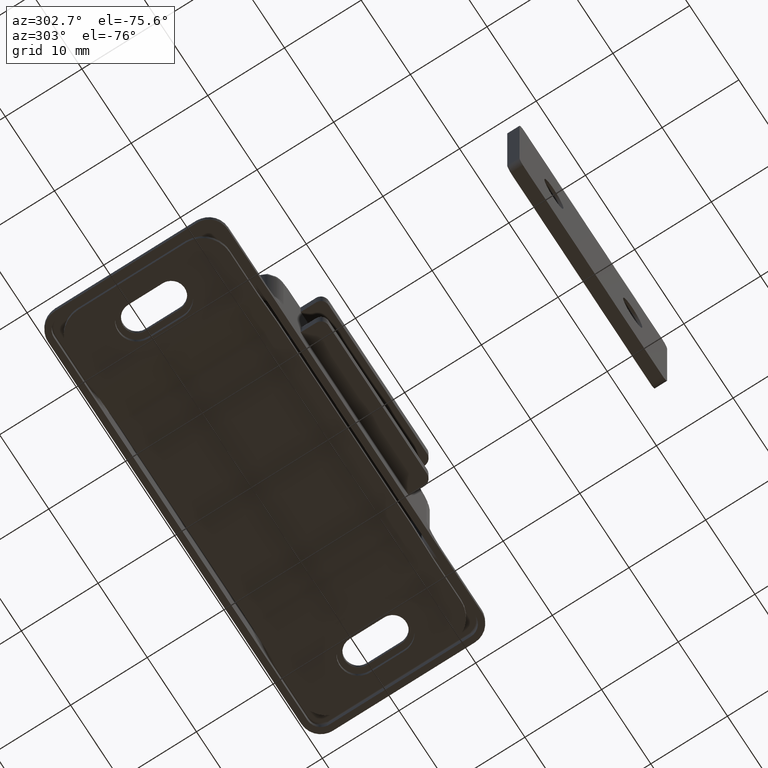
[diagram: clean part render]
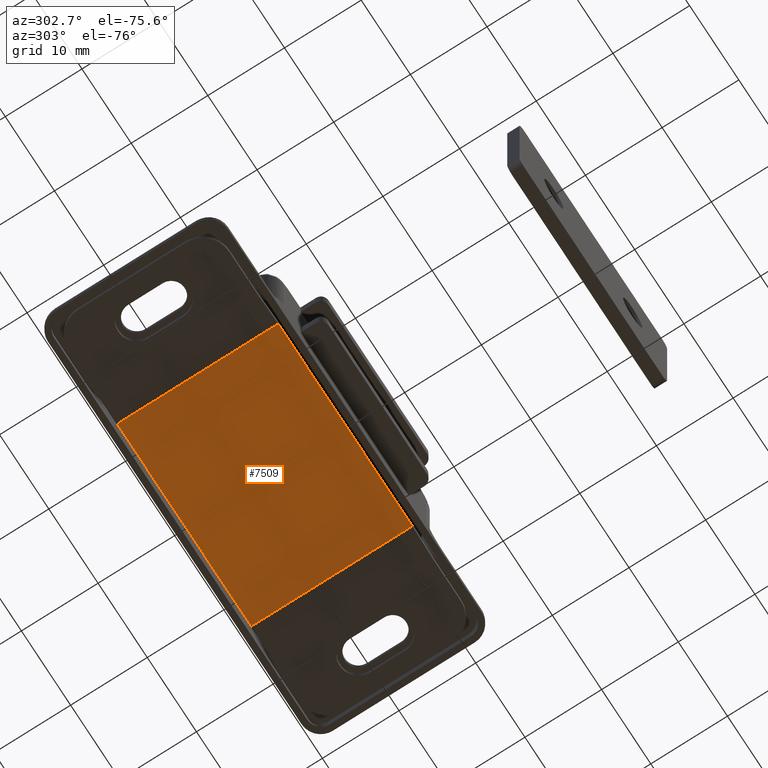
[diagram: same view with one face highlighted and labeled with its STEP entity id]
A machine part, auxiliary view. The second image highlights one B-rep face of the part: STEP entity #7509.
In plain terms, the highlighted face is a freeform B-spline surface patch.
Its self-contained STEP definition (entity closure, byte-faithful):
#7212=CARTESIAN_POINT('',(-13.618370095584099,-22.250000000000000,0.800000000000000));
#7213=VERTEX_POINT('',#7212);
#7219=CARTESIAN_POINT('',(13.618370095584099,-22.250000000000000,0.800000000000000));
#7220=VERTEX_POINT('',#7219);
#7221=CARTESIAN_POINT('',(-13.618370095584099,-22.250000000000000,0.800000000000000));
#7222=CARTESIAN_POINT('',(13.618370095584099,-22.250000000000000,0.800000000000000));
#7223=QUASI_UNIFORM_CURVE('',1,(#7221,#7222),.UNSPECIFIED.,.F.,.U.);
#7224=EDGE_CURVE('',#7213,#7220,#7223,.T.);
#7412=CARTESIAN_POINT('',(13.618370095584099,-1.249999999999972,0.800000000000000));
#7413=VERTEX_POINT('',#7412);
#7419=CARTESIAN_POINT('',(-13.618370095584099,-1.249999999999972,0.800000000000000));
#7420=VERTEX_POINT('',#7419);
#7421=CARTESIAN_POINT('',(-13.618370095584099,-1.249999999999972,0.800000000000000));
#7422=CARTESIAN_POINT('',(13.618370095584099,-1.249999999999972,0.800000000000000));
#7423=QUASI_UNIFORM_CURVE('',1,(#7421,#7422),.UNSPECIFIED.,.F.,.U.);
#7424=EDGE_CURVE('',#7420,#7413,#7423,.T.);
#7484=CARTESIAN_POINT('',(13.618370095584099,-1.249999999999972,0.800000000000000));
#7485=CARTESIAN_POINT('',(13.618370095584099,-22.250000000000000,0.800000000000000));
#7486=QUASI_UNIFORM_CURVE('',1,(#7484,#7485),.UNSPECIFIED.,.F.,.U.);
#7487=EDGE_CURVE('',#7413,#7220,#7486,.T.);
#7494=CARTESIAN_POINT('',(14.978845215342870,-23.298949959297929,0.800000000000000));
#7495=CARTESIAN_POINT('',(-14.978845945889169,-23.298949959297929,0.800000000000000));
#7496=CARTESIAN_POINT('',(14.978845215342870,-0.201049477438152,0.800000000000000));
#7497=CARTESIAN_POINT('',(-14.978845945889169,-0.201049477438152,0.800000000000000));
#7498=B_SPLINE_SURFACE_WITH_KNOTS('',1,1,((#7494,#7496),(#7495,#7497)),.UNSPECIFIED.,.F.,.F.,.U.,(2,2),(2,2),(0.0,29.957691161232031),(0.0,23.097900481859782),.UNSPECIFIED.);
#7499=ORIENTED_EDGE('',*,*,#7224,.F.);
#7500=CARTESIAN_POINT('',(-13.618370095584099,-1.249999999999972,0.800000000000000));
#7501=CARTESIAN_POINT('',(-13.618370095584099,-22.250000000000000,0.800000000000000));
#7502=QUASI_UNIFORM_CURVE('',1,(#7500,#7501),.UNSPECIFIED.,.F.,.U.);
#7503=EDGE_CURVE('',#7420,#7213,#7502,.T.);
#7504=ORIENTED_EDGE('',*,*,#7503,.F.);
#7505=ORIENTED_EDGE('',*,*,#7424,.T.);
#7506=ORIENTED_EDGE('',*,*,#7487,.T.);
#7507=EDGE_LOOP('',(#7499,#7504,#7505,#7506));
#7508=FACE_OUTER_BOUND('',#7507,.T.);
#7509=ADVANCED_FACE('',(#7508),#7498,.T.);